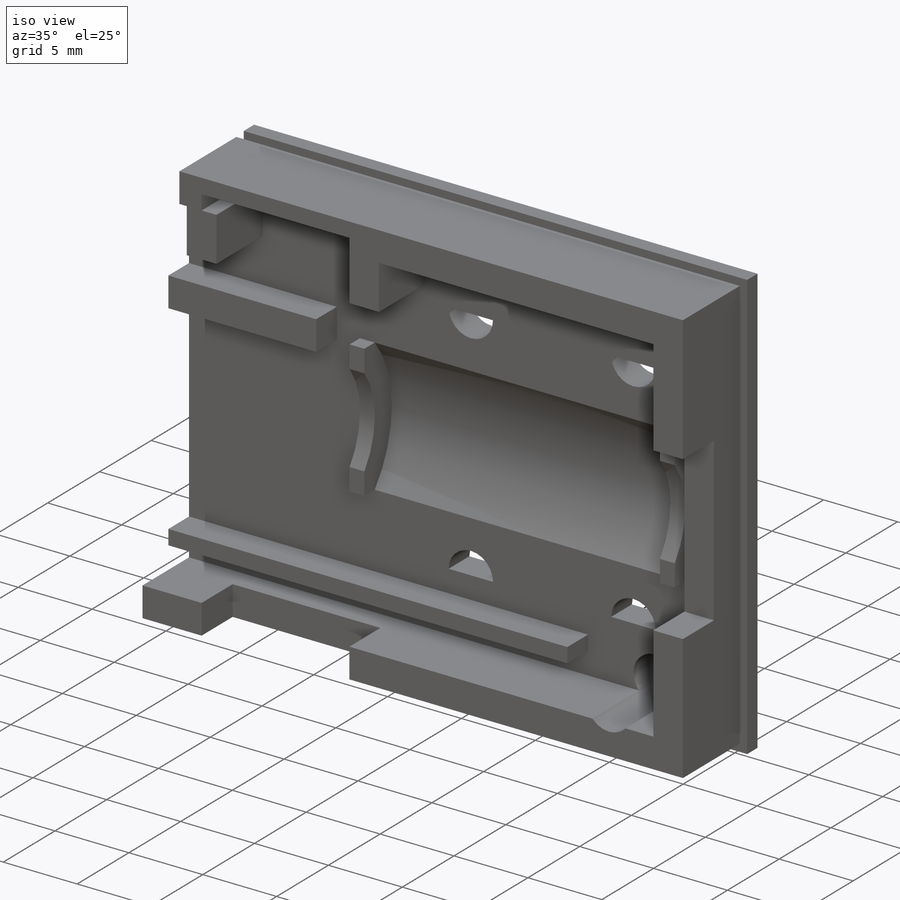
[diagram: iso view]
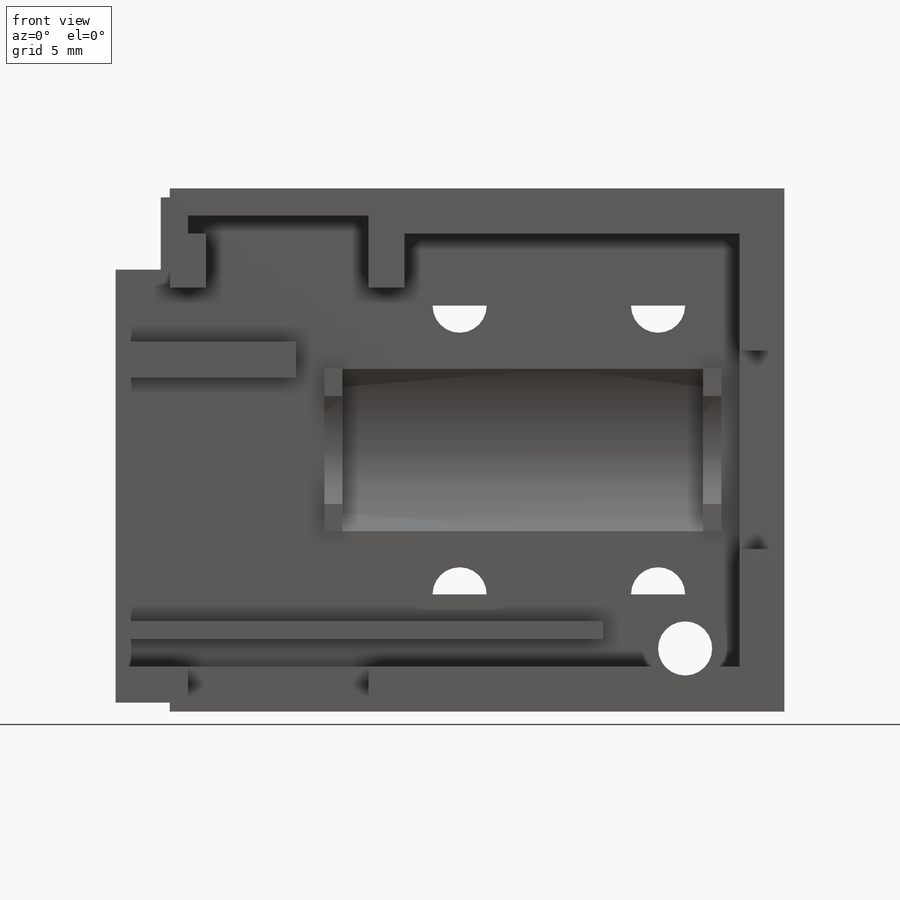
[diagram: front view]
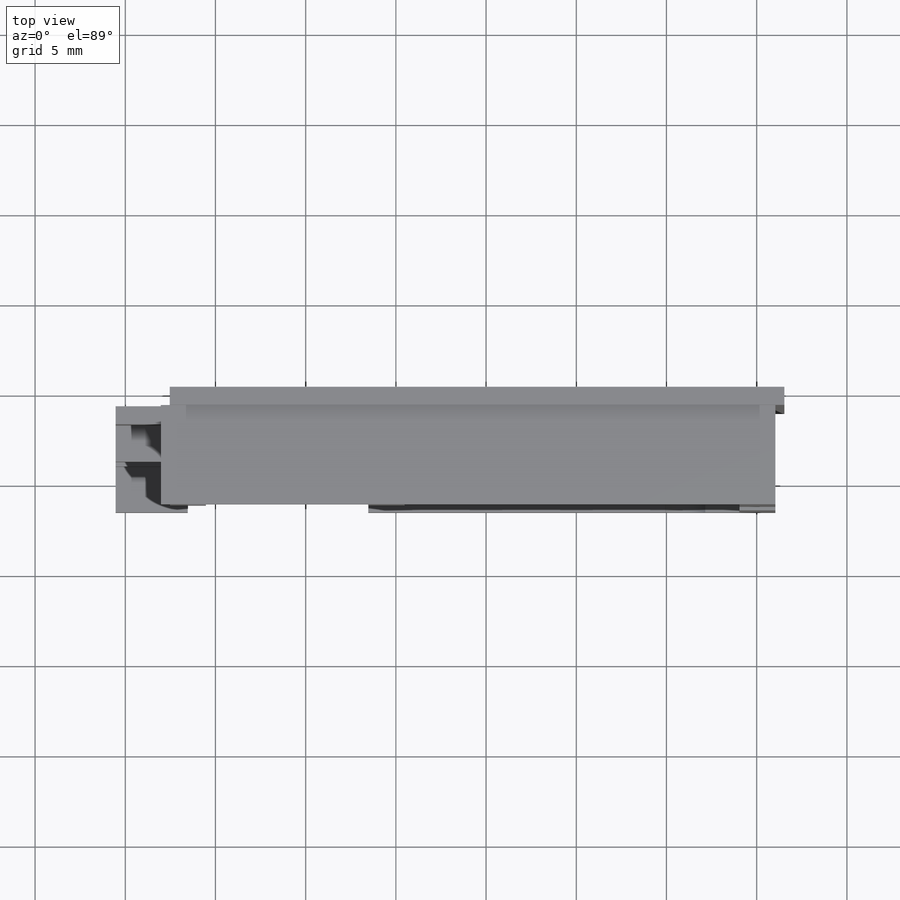
[diagram: top view]
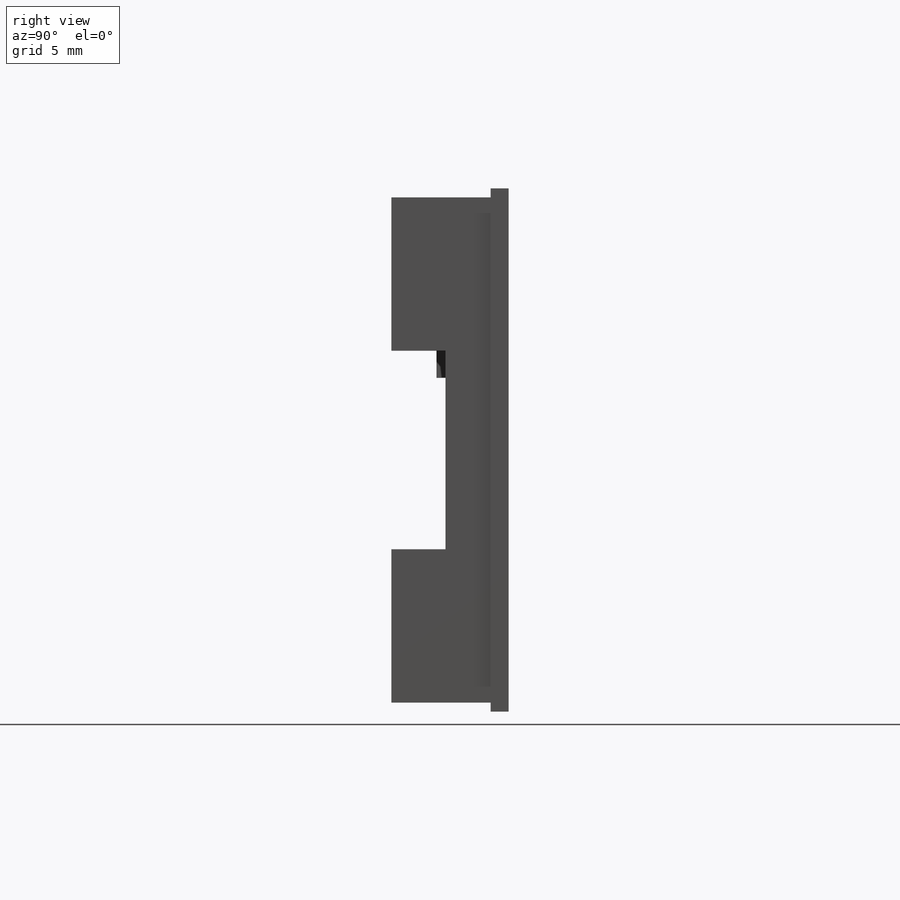
[diagram: right view]
SOLIDWORKS PART (.sldprt)
format: sldprt  version: not decoded by parser v0  size: 474,624 bytes
history: native  units: mm
features: sketch x14, cut_extrude x9, extrude x5, plane x4, material x1, shell x1, pattern_linear x1, mirror x1 (+12 scaffold rows collapsed)
feature tree (48):
  scaffold x12  (default folders/planes/origin — collapsed)
  material  "ABS"
  plane  "Face"
  plane  "Dessus"
  plane  "Droite"
  sketch  "Esquisse2"  dims[D1=29.0mm D2=~34.067385mm]
  extrude  "Extrusion1"  Depth=1mm
  sketch  "Esquisse3"  dims[D1=0.5mm D2=0.5mm D3=0.5mm D4=3.0mm]
  extrude  "Extrusion2"  Depth=5.5mm
  shell  "Coque2"  Thickness=2mm
  sketch  "Esquisse4"  dims[c1.D1=20.0mm c1.D2=3.0mm c2.D1=11.0mm c2.D3=8.0mm]
  cut_extrude  "Enlèv. mat.-Extru.1"  Depth=2mm
  sketch  "Esquisse5"
  cut_extrude  "Enlèv. mat.-Extru.2"  [1 undecoded]
  sketch  "Esquisse7"  dims[c1.D1=4.0mm c1.D2=2.5mm c2.D1=4.0mm]
  cut_extrude  "Enlèv. mat.-Extru.3"  Depth=10mm
  sketch  "Esquisse8"  dims[D1=10.0mm D2=3.0mm D3=4.0mm]
  cut_extrude  "Enlèv. mat.-Extru.4"  Depth=27mm
  sketch  "Esquisse9"  dims[c1.D1=15.0mm c1.D2=4.0mm c1.D3=1.0mm c1.D4=1.0mm c1.D5=1.0mm c1.D6=1.0mm c2.D2=24.0mm c2.D1=3.0mm c3.D2=2.0mm c3.D3=2.0mm c3.D4=3.0mm c3.D5=9.0mm c3.D6=0.5mm]
  extrude  "Extrusion4"  [1 undecoded]
  sketch  "Esquisse6"  dims[c1.D1=2.0mm c1.D2=27.0mm c1.D3=7.0mm c1.D4=10.0mm c2.D1=2.0mm c2.D2=7.0mm c2.D3=10.0mm c2.D4=27.0mm c2.D5=1.0mm c2.D6=2.0mm c3.D1=1.5mm c3.D4=1.0mm c3.D2=6.0mm c4.D4=2.0mm c4.D6=27.0mm c4.D5=1.0mm]
  extrude  "Extrusion3"  Depth=2mm
  sketch  "Esquisse10"  dims[D1=3.0mm D2=4.0mm D3=4.5mm]
  sketch  "Esquisse12"  dims[c1.D1=9.0mm c1.D2=1.0mm c1.D3=1.0mm c1.D4=14.0mm c1.D5=1.0mm c1.D6=9.0mm c1.D7=20.0mm c2.D4=14.0mm c2.D8=4.5mm c2.D9=4.5mm c3.D4=14.0mm c3.D1=~11.567385mm c3.D2=~12.567385mm c3.D3=~32.567385mm c4.D4=~33.567385mm c4.D1=~11.567385mm c4.D2=~12.567385mm c4.D3=~32.567385mm c5.D4=7.5mm c5.D5=12.0mm c5.D6=16.5mm c6.D4=7.5mm c6.D5=12.0mm]
  extrude  "Extrusion6"  Depth=1mm
  sketch  "Esquisse13"  dims[c1.D3=5.0mm c1.D1=6.0mm c1.D2=1.5mm c2.D3=1.0mm]
  cut_extrude  "Enlèv. mat.-Extru.6"  [1 undecoded]
  sketch  "Esquisse16"  dims[D1=2.0mm]
  cut_extrude  "Enlèv. mat.-Extru.9"  [1 undecoded]
  sketch  "Esquisse17"  dims[c1.D1=~3.883541mm c1.D3=3.0mm c2.D1=3.5mm c2.D2=5.5mm c2.D3=3.0mm c3.D1=3.5mm]
  cut_extrude  "Enlèv. mat.-Extru.10"  [1 undecoded]
  cut_extrude  "Enlèv. mat.-Extru.11"  [1 undecoded]
  pattern_linear  "Répétition linéaire1"  Count1=2 Count2=1 Spacing1=11mm Spacing2=15mm
  plane  "Plan1"  Offset=14mm
  mirror  "Symétrie1"
  sketch  "Esquisse19"
  cut_extrude  "Enlèv. mat.-Extru.12"  [1 undecoded]
decode coverage: 21 of 31 modeling features carry decoded parameters
note: ~ marks probable driven/reference dimensions
note: 7 parameter values undecoded
summary: no parameter record found for 7 features
note: suppression state not decoded; provenance and decode notes live in map.json
